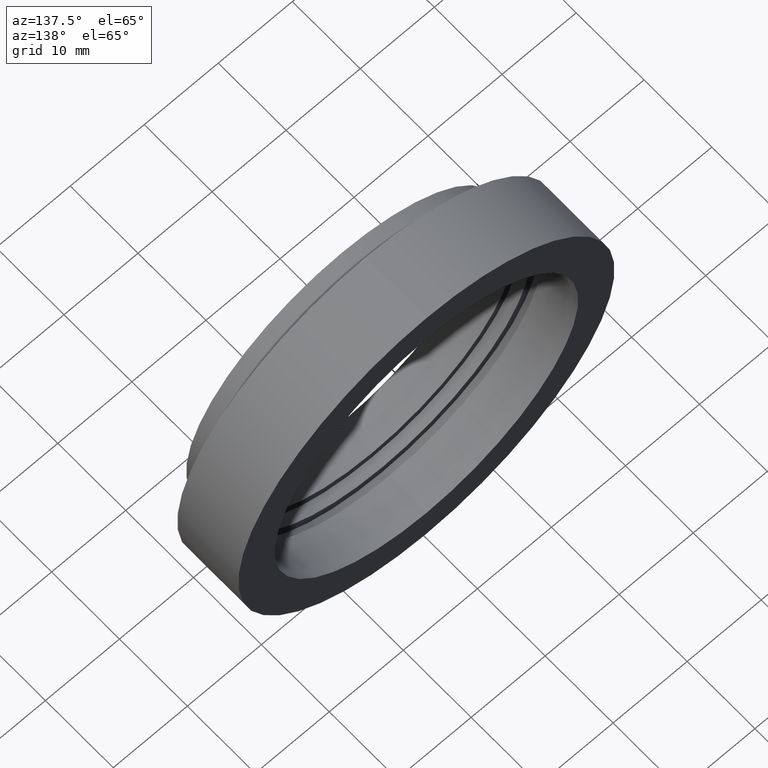
[diagram: clean part render]
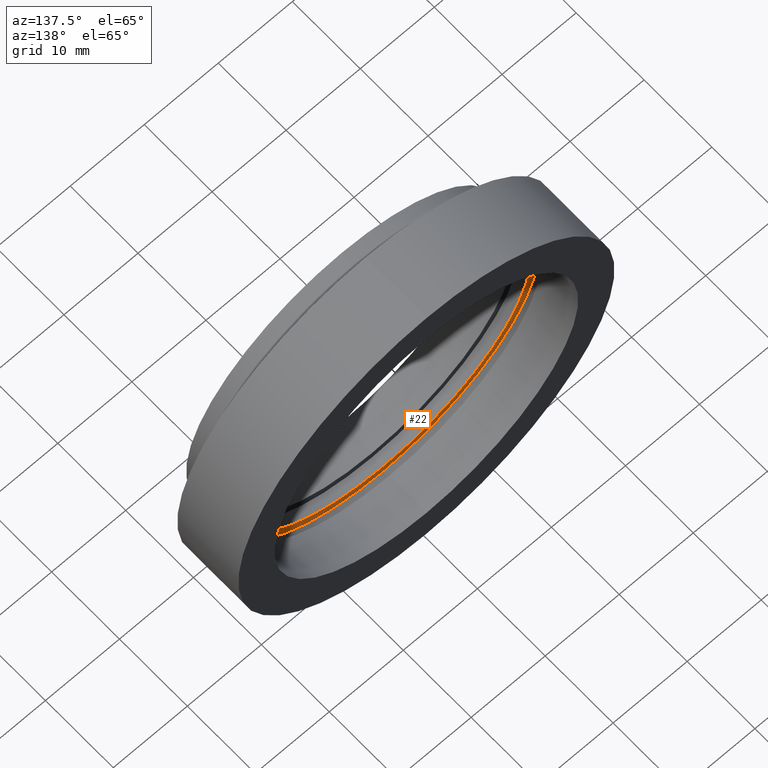
[diagram: same view with one face highlighted and labeled with its STEP entity id]
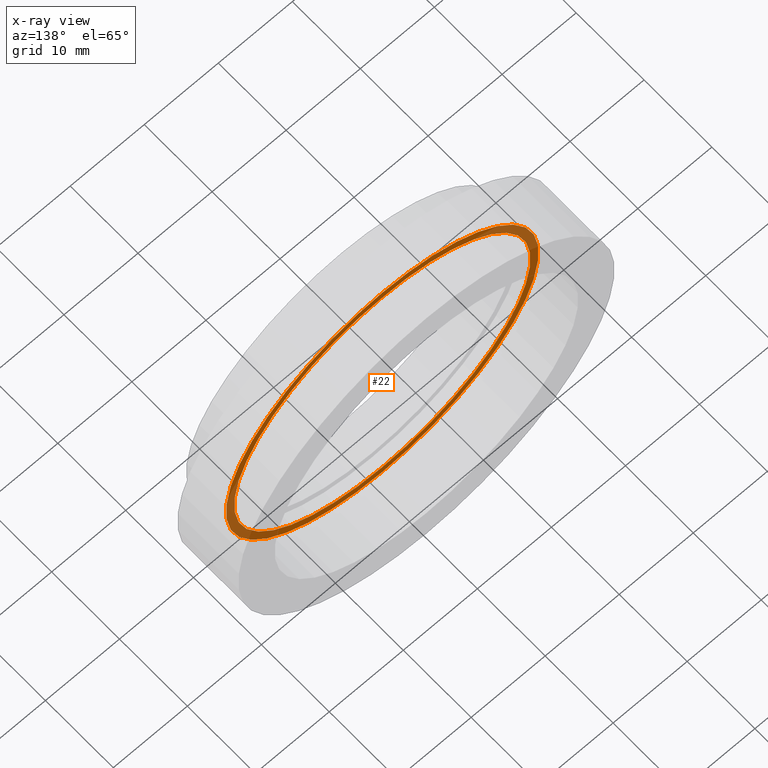
[diagram: x-ray of the same camera — body ghosted, the highlighted face saturated]
A machine part, auxiliary view. The second image highlights one B-rep face of the part: STEP entity #22.
The next image is the same camera in x-ray: the body ghosted, the highlighted face saturated — about 33% of this face is hidden behind the body in this view.
In plain terms, the highlighted planar face has unit normal (0, 1, 0).
Its self-contained STEP definition (entity closure, byte-faithful):
#22 = ADVANCED_FACE ( 'NONE', ( #361, #498 ), #132, .T. ) ;
#41 = ORIENTED_EDGE ( 'NONE', *, *, #165, .F. ) ;
#55 = EDGE_CURVE ( 'NONE', #521, #395, #250, .T. ) ;
#82 = CARTESIAN_POINT ( 'NONE',  ( 0.0000000000000000000, 6.000000000000000000, 0.0000000000000000000 ) ) ;
#85 = DIRECTION ( 'NONE',  ( 0.0000000000000000000, 0.0000000000000000000, -1.000000000000000000 ) ) ;
#99 = CARTESIAN_POINT ( 'NONE',  ( 0.0000000000000000000, 6.000000000000000000, 0.0000000000000000000 ) ) ;
#102 = DIRECTION ( 'NONE',  ( -0.0000000000000000000, -1.000000000000000000, -0.0000000000000000000 ) ) ;
#118 = DIRECTION ( 'NONE',  ( -0.0000000000000000000, -1.000000000000000000, -0.0000000000000000000 ) ) ;
#130 = CARTESIAN_POINT ( 'NONE',  ( 21.10000000000000100, 6.000000000000000000, 0.0000000000000000000 ) ) ;
#132 = PLANE ( 'NONE',  #221 ) ;
#155 = CIRCLE ( 'NONE', #279, 20.00000000000000000 ) ;
#159 = DIRECTION ( 'NONE',  ( 0.0000000000000000000, 0.0000000000000000000, -1.000000000000000000 ) ) ;
#165 = EDGE_CURVE ( 'NONE', #395, #521, #471, .T. ) ;
#170 = CIRCLE ( 'NONE', #457, 20.00000000000000000 ) ;
#188 = CARTESIAN_POINT ( 'NONE',  ( 0.0000000000000000000, 6.000000000000000000, -20.00000000000000000 ) ) ;
#221 = AXIS2_PLACEMENT_3D ( 'NONE', #130, #266, #487 ) ;
#250 = CIRCLE ( 'NONE', #466, 21.10000000000000100 ) ;
#266 = DIRECTION ( 'NONE',  ( 0.0000000000000000000, 1.000000000000000000, 0.0000000000000000000 ) ) ;
#279 = AXIS2_PLACEMENT_3D ( 'NONE', #687, #406, #686 ) ;
#288 = CARTESIAN_POINT ( 'NONE',  ( 2.584004746200915400E-015, 6.000000000000000000, 21.10000000000000100 ) ) ;
#294 = CARTESIAN_POINT ( 'NONE',  ( 2.449293598294706500E-015, 6.000000000000000000, 20.00000000000000000 ) ) ;
#320 = EDGE_LOOP ( 'NONE', ( #41, #605 ) ) ;
#344 = CARTESIAN_POINT ( 'NONE',  ( 0.0000000000000000000, 6.000000000000000000, -21.10000000000000100 ) ) ;
#345 = DIRECTION ( 'NONE',  ( 0.0000000000000000000, 0.0000000000000000000, -1.000000000000000000 ) ) ;
#361 = FACE_BOUND ( 'NONE', #710, .T. ) ;
#395 = VERTEX_POINT ( 'NONE', #344 ) ;
#397 = EDGE_CURVE ( 'NONE', #699, #468, #170, .T. ) ;
#402 = CARTESIAN_POINT ( 'NONE',  ( 0.0000000000000000000, 6.000000000000000000, 0.0000000000000000000 ) ) ;
#406 = DIRECTION ( 'NONE',  ( -0.0000000000000000000, -1.000000000000000000, -0.0000000000000000000 ) ) ;
#457 = AXIS2_PLACEMENT_3D ( 'NONE', #402, #118, #345 ) ;
#463 = ORIENTED_EDGE ( 'NONE', *, *, #397, .T. ) ;
#466 = AXIS2_PLACEMENT_3D ( 'NONE', #82, #657, #85 ) ;
#468 = VERTEX_POINT ( 'NONE', #294 ) ;
#471 = CIRCLE ( 'NONE', #476, 21.10000000000000100 ) ;
#476 = AXIS2_PLACEMENT_3D ( 'NONE', #99, #102, #159 ) ;
#487 = DIRECTION ( 'NONE',  ( 0.0000000000000000000, -0.0000000000000000000, 1.000000000000000000 ) ) ;
#498 = FACE_OUTER_BOUND ( 'NONE', #320, .T. ) ;
#516 = ORIENTED_EDGE ( 'NONE', *, *, #569, .T. ) ;
#521 = VERTEX_POINT ( 'NONE', #288 ) ;
#569 = EDGE_CURVE ( 'NONE', #468, #699, #155, .T. ) ;
#605 = ORIENTED_EDGE ( 'NONE', *, *, #55, .F. ) ;
#657 = DIRECTION ( 'NONE',  ( -0.0000000000000000000, -1.000000000000000000, -0.0000000000000000000 ) ) ;
#686 = DIRECTION ( 'NONE',  ( 0.0000000000000000000, 0.0000000000000000000, -1.000000000000000000 ) ) ;
#687 = CARTESIAN_POINT ( 'NONE',  ( 0.0000000000000000000, 6.000000000000000000, 0.0000000000000000000 ) ) ;
#699 = VERTEX_POINT ( 'NONE', #188 ) ;
#710 = EDGE_LOOP ( 'NONE', ( #463, #516 ) ) ;